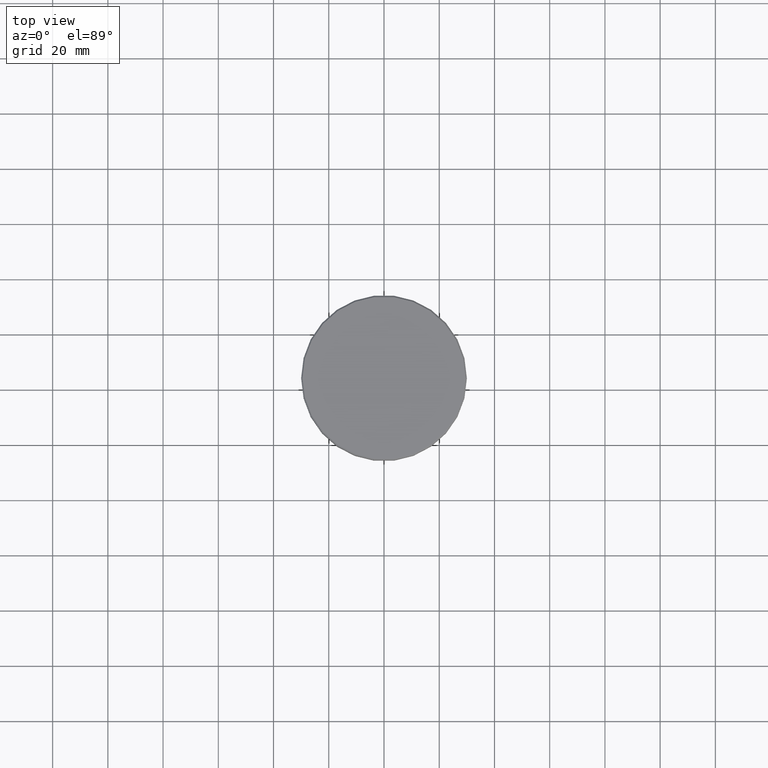
[diagram: clean part render]
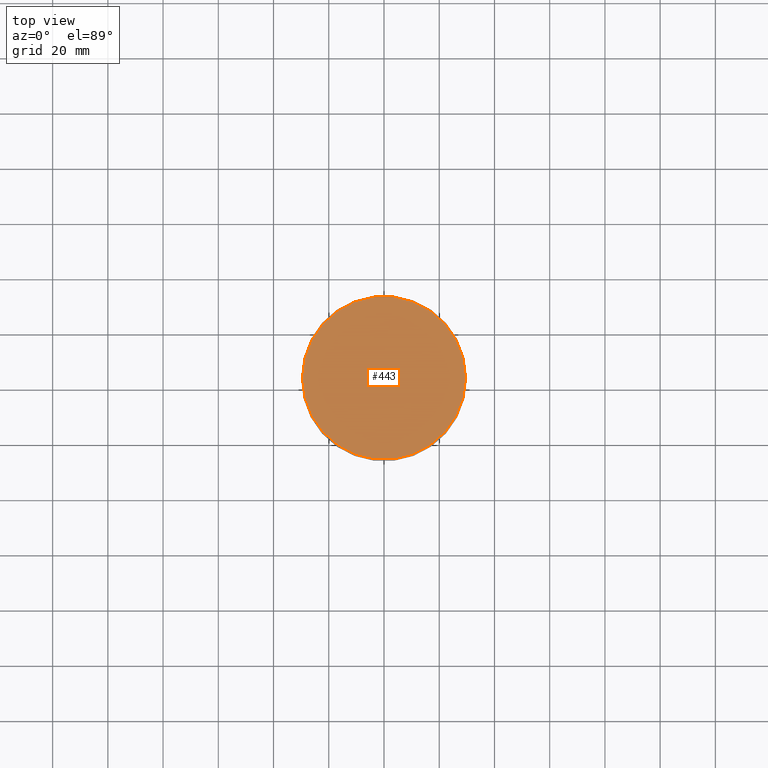
[diagram: same view with one face highlighted and labeled with its STEP entity id]
A machine part, top view. The second image highlights one B-rep face of the part: STEP entity #443.
In plain terms, the highlighted planar face has unit normal (0, -0, 1).
Its self-contained STEP definition (entity closure, byte-faithful):
#22 = CARTESIAN_POINT ( 'NONE',  ( -29.50000000000000000, 0.000000000000000000, 0.000000000000000000 ) ) ;
#40 = DIRECTION ( 'NONE',  ( 0.000000000000000000, -0.000000000000000000, 1.000000000000000000 ) ) ;
#82 = EDGE_CURVE ( 'NONE', #1100, #868, #323, .T. ) ;
#133 = PLANE ( 'NONE',  #1118 ) ;
#239 = ORIENTED_EDGE ( 'NONE', *, *, #288, .T. ) ;
#281 = CARTESIAN_POINT ( 'NONE',  ( 0.000000000000000000, 0.000000000000000000, 0.000000000000000000 ) ) ;
#288 = EDGE_CURVE ( 'NONE', #868, #1100, #575, .T. ) ;
#323 = CIRCLE ( 'NONE', #999, 29.50000000000000000 ) ;
#443 = ADVANCED_FACE ( 'NONE', ( #1120 ), #133, .T. ) ;
#483 = CARTESIAN_POINT ( 'NONE',  ( 29.50000000000000000, 3.643324227463375391E-15, 0.000000000000000000 ) ) ;
#496 = DIRECTION ( 'NONE',  ( -0.000000000000000000, -0.000000000000000000, 1.000000000000000000 ) ) ;
#535 = DIRECTION ( 'NONE',  ( 1.000000000000000000, 0.000000000000000000, 0.000000000000000000 ) ) ;
#575 = CIRCLE ( 'NONE', #1150, 29.50000000000000000 ) ;
#616 = EDGE_LOOP ( 'NONE', ( #852, #239 ) ) ;
#695 = CARTESIAN_POINT ( 'NONE',  ( 0.000000000000000000, 0.000000000000000000, 0.000000000000000000 ) ) ;
#774 = DIRECTION ( 'NONE',  ( 1.000000000000000000, 0.000000000000000000, 0.000000000000000000 ) ) ;
#852 = ORIENTED_EDGE ( 'NONE', *, *, #82, .T. ) ;
#862 = CARTESIAN_POINT ( 'NONE',  ( 0.000000000000000000, 0.000000000000000000, 0.000000000000000000 ) ) ;
#868 = VERTEX_POINT ( 'NONE', #483 ) ;
#951 = DIRECTION ( 'NONE',  ( -0.000000000000000000, -0.000000000000000000, 1.000000000000000000 ) ) ;
#999 = AXIS2_PLACEMENT_3D ( 'NONE', #281, #496, #1117 ) ;
#1100 = VERTEX_POINT ( 'NONE', #22 ) ;
#1117 = DIRECTION ( 'NONE',  ( 1.000000000000000000, 0.000000000000000000, 0.000000000000000000 ) ) ;
#1118 = AXIS2_PLACEMENT_3D ( 'NONE', #695, #40, #535 ) ;
#1120 = FACE_OUTER_BOUND ( 'NONE', #616, .T. ) ;
#1150 = AXIS2_PLACEMENT_3D ( 'NONE', #862, #951, #774 ) ;